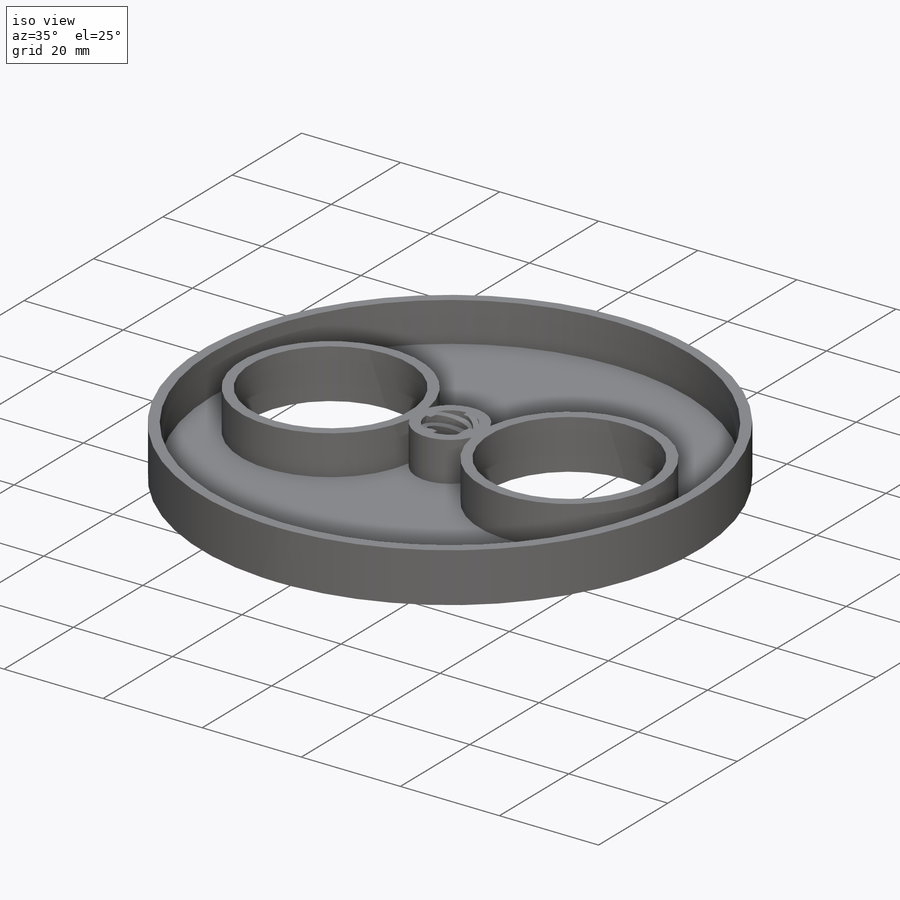
[diagram: iso view]
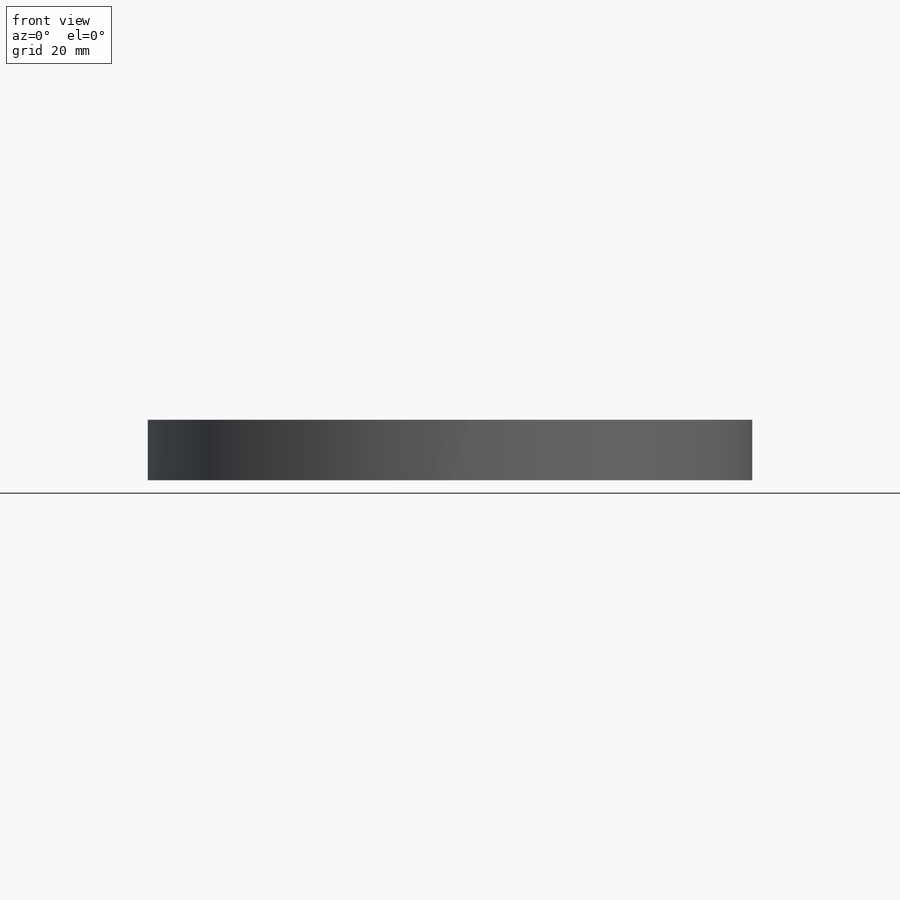
[diagram: front view]
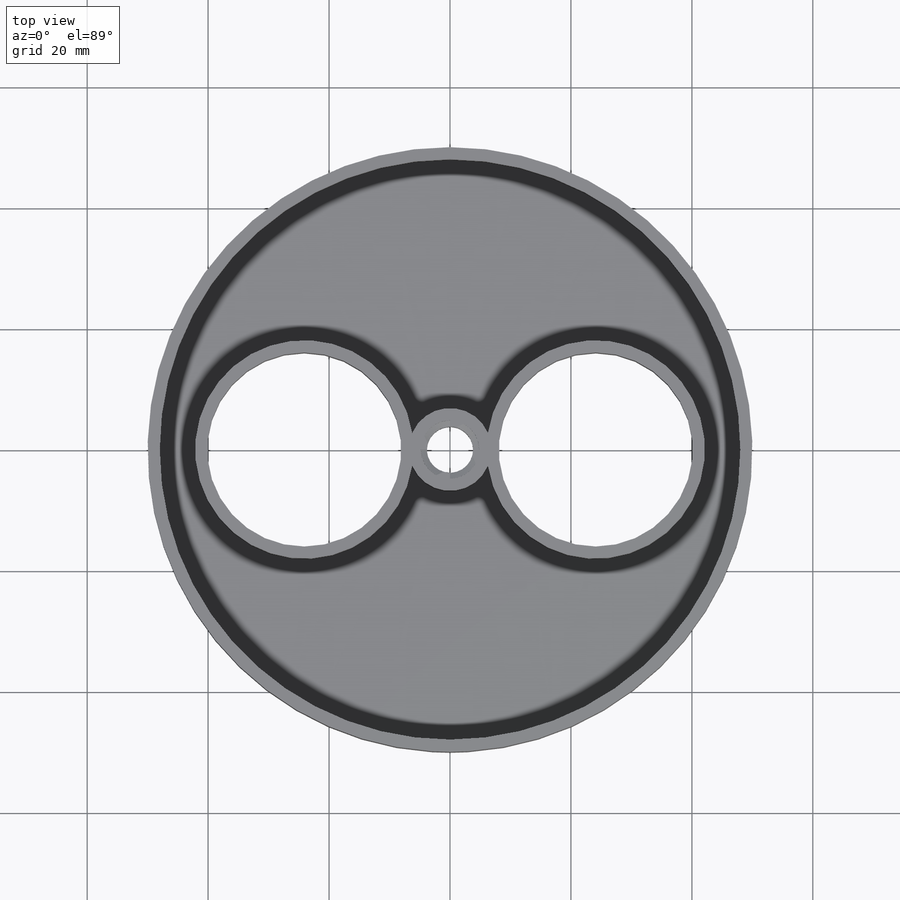
[diagram: top view]
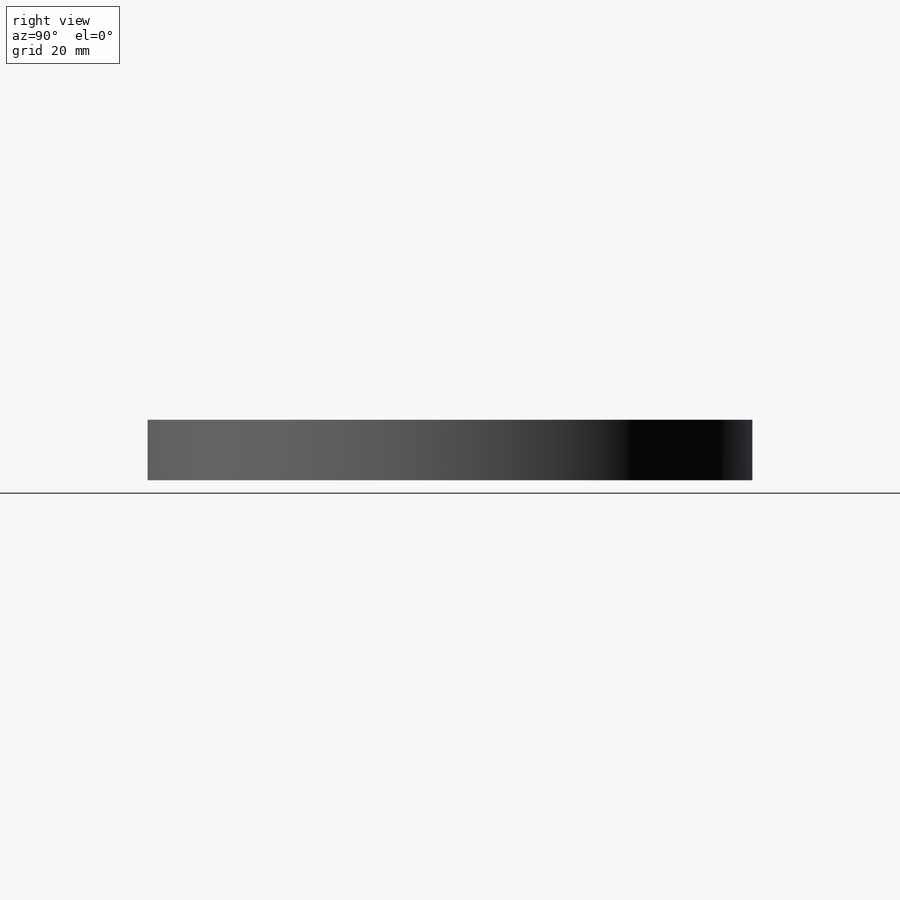
[diagram: right view]
SOLIDWORKS PART (.sldprt)
format: sldprt  version: not decoded by parser v0  size: 445,952 bytes
history: native  units: mm
features: sketch x8, cut_extrude x5, material x1, extrude x1, helix x1, sweep x1, pattern_circular x1 (+12 scaffold rows collapsed)
feature tree (30):
  scaffold x12  (default folders/planes/origin — collapsed)
  material  "Material <not specified>"
  sketch  "Sketch1"  dims[D1=100.0mm]
  extrude  "Boss-Extrude1"  Depth=10mm
  sketch  "Sketch2"  dims[D1=9.65mm]
  cut_extrude  "Cut-Extrude1"  [1 undecoded]
  sketch  "Sketch5"  dims[D1=9.65mm]
  helix  "Helix/Spiral2"  Pitch=10mm
  sketch  "Sketch8"  dims[c1.D1=1.0mm c1.D2=1.5mm c2.D2=29.0deg c2.D3=1.5mm c3.D3=75.5deg c3.D4=1.0mm c3.D5=~0.838072mm c4.D4=1.0mm]
  sweep  "Sweep1"
  pattern_circular  "CirPattern1"  Count=4 Angle=90deg
  sketch  "Sketch19"  dims[D1=0.0mm]
  cut_extrude  "Cut-Extrude10"  Depth=2mm
  cut_extrude  "Cut-Extrude9"  [1 undecoded]
  sketch  "Sketch1<2>"  dims[D1=2.0mm]
  sketch  "Sketch20"  dims[D1=32.1mm D2=32.1mm D3=24.1mm D4=24.1mm]
  cut_extrude  "Cut-Extrude11"  Depth=10mm
  sketch  "Sketch21"  dims[c1.D1=~12.387524mm c1.D3=2.0mm c2.D1=3.0mm c2.D2=2.0mm c3.D1=2.0mm]
  cut_extrude  "Cut-Extrude12"  Depth=8mm
decode coverage: 14 of 17 modeling features carry decoded parameters
note: ~ marks probable driven/reference dimensions
note: 2 parameter values undecoded
note: suppression state not decoded; provenance and decode notes live in map.json
